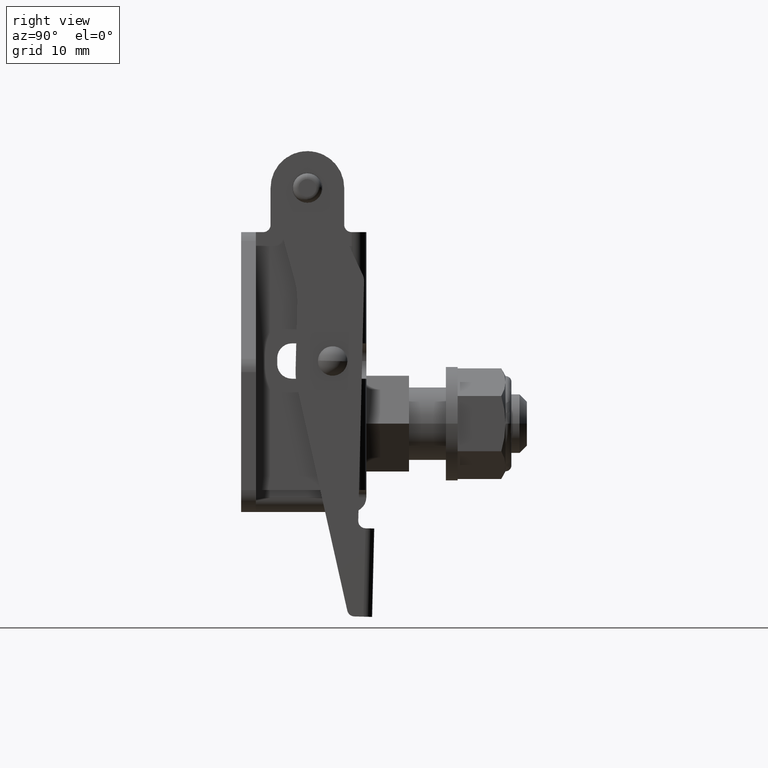
[diagram: clean part render]
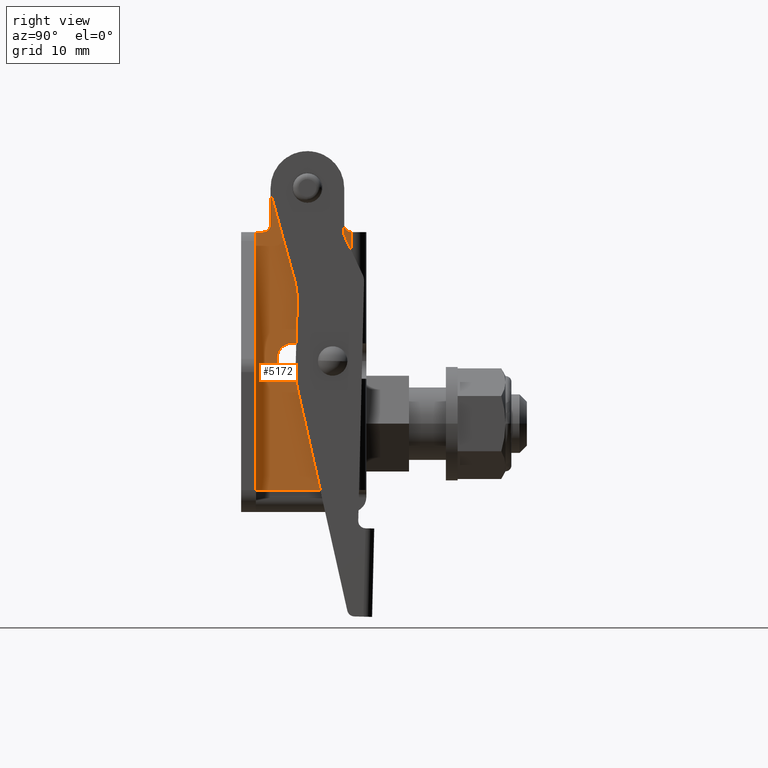
[diagram: same view with one face highlighted and labeled with its STEP entity id]
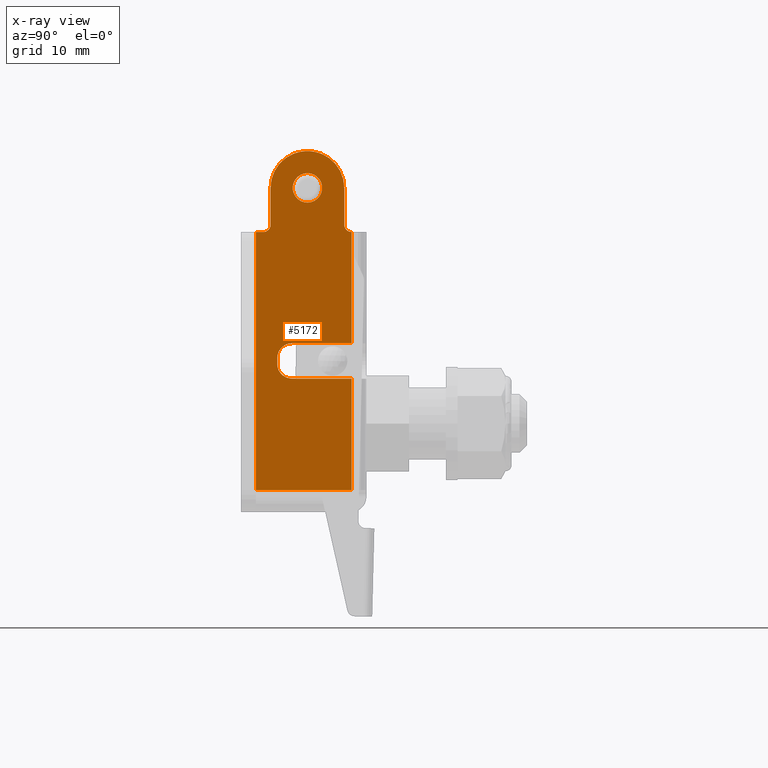
[diagram: x-ray of the same camera — body ghosted, the highlighted face saturated]
A machine part, right view. The second image highlights one B-rep face of the part: STEP entity #5172.
The next image is the same camera in x-ray: the body ghosted, the highlighted face saturated — about 0% of this face is hidden behind the body in this view.
In plain terms, the highlighted planar face has unit normal (1, 0, 0).
Its self-contained STEP definition (entity closure, byte-faithful):
#98 = DIRECTION ( 'NONE',  ( 0.0000000000000000000, 1.000000000000000000, 0.0000000000000000000 ) ) ;
#243 = VERTEX_POINT ( 'NONE', #5981 ) ;
#319 = ORIENTED_EDGE ( 'NONE', *, *, #6532, .T. ) ;
#422 = CIRCLE ( 'NONE', #5899, 4.999999999999997300 ) ;
#431 = EDGE_CURVE ( 'NONE', #6298, #2782, #8142, .T. ) ;
#438 = ORIENTED_EDGE ( 'NONE', *, *, #6335, .T. ) ;
#463 = CARTESIAN_POINT ( 'NONE',  ( 16.49999999999999300, 3.000000000000000000, 26.00000000000000700 ) ) ;
#521 = VECTOR ( 'NONE', #9909, 1000.000000000000000 ) ;
#543 = CARTESIAN_POINT ( 'NONE',  ( 16.50000000000000000, 15.00000000000000200, -12.00000000000000000 ) ) ;
#743 = CARTESIAN_POINT ( 'NONE',  ( 16.49999999999999600, 6.900000000000001200, 8.100000000000005000 ) ) ;
#1022 = VECTOR ( 'NONE', #98, 1000.000000000000000 ) ;
#1155 = VERTEX_POINT ( 'NONE', #8279 ) ;
#1179 = EDGE_LOOP ( 'NONE', ( #319, #7028, #8152, #6154, #2257, #1730, #8634, #1729, #438, #7155, #6210, #8475, #7410, #6453, #1508 ) ) ;
#1314 = EDGE_CURVE ( 'NONE', #243, #1155, #8227, .T. ) ;
#1508 = ORIENTED_EDGE ( 'NONE', *, *, #2205, .T. ) ;
#1523 = DIRECTION ( 'NONE',  ( 0.0000000000000000000, 0.0000000000000000000, -1.000000000000000000 ) ) ;
#1529 = LINE ( 'NONE', #1993, #9569 ) ;
#1672 = CARTESIAN_POINT ( 'NONE',  ( 16.50000000000000000, 2.000000000000001800, -9.000000000000007100 ) ) ;
#1729 = ORIENTED_EDGE ( 'NONE', *, *, #5186, .T. ) ;
#1730 = ORIENTED_EDGE ( 'NONE', *, *, #3782, .T. ) ;
#1748 = CARTESIAN_POINT ( 'NONE',  ( 16.49999999999999600, 6.900000000000001200, 8.900000000000007500 ) ) ;
#1915 = AXIS2_PLACEMENT_3D ( 'NONE', #1748, #7172, #2527 ) ;
#1917 = ORIENTED_EDGE ( 'NONE', *, *, #1978, .F. ) ;
#1978 = EDGE_CURVE ( 'NONE', #1155, #243, #2867, .T. ) ;
#1993 = CARTESIAN_POINT ( 'NONE',  ( 16.50000000000000000, 4.000000000000000000, -12.00000000000000000 ) ) ;
#2131 = VERTEX_POINT ( 'NONE', #2282 ) ;
#2139 = LINE ( 'NONE', #543, #9949 ) ;
#2146 = VECTOR ( 'NONE', #3609, 1000.000000000000000 ) ;
#2205 = EDGE_CURVE ( 'NONE', #2782, #9200, #5551, .T. ) ;
#2219 = DIRECTION ( 'NONE',  ( -1.000000000000000000, -0.0000000000000000000, -1.577021341797097600E-016 ) ) ;
#2249 = VERTEX_POINT ( 'NONE', #5648 ) ;
#2257 = ORIENTED_EDGE ( 'NONE', *, *, #7683, .F. ) ;
#2280 = CARTESIAN_POINT ( 'NONE',  ( 16.49999999999999300, 2.000000000000001800, 26.00000000000000700 ) ) ;
#2282 = CARTESIAN_POINT ( 'NONE',  ( 16.49999999999999300, 4.000000000000000000, 27.00000000000000700 ) ) ;
#2474 = LINE ( 'NONE', #8857, #8431 ) ;
#2507 = AXIS2_PLACEMENT_3D ( 'NONE', #7496, #9076, #4419 ) ;
#2527 = DIRECTION ( 'NONE',  ( 0.0000000000000000000, 0.0000000000000000000, -1.000000000000000000 ) ) ;
#2540 = CARTESIAN_POINT ( 'NONE',  ( 16.49999999999999300, 9.000000000000001800, 32.00000000000000000 ) ) ;
#2640 = LINE ( 'NONE', #5136, #2146 ) ;
#2646 = DIRECTION ( 'NONE',  ( 0.0000000000000000000, -1.000000000000000000, 0.0000000000000000000 ) ) ;
#2672 = VERTEX_POINT ( 'NONE', #8459 ) ;
#2774 = AXIS2_PLACEMENT_3D ( 'NONE', #6866, #2219, #7661 ) ;
#2782 = VERTEX_POINT ( 'NONE', #3286 ) ;
#2867 = CIRCLE ( 'NONE', #7658, 1.999999999999994900 ) ;
#2873 = EDGE_CURVE ( 'NONE', #2249, #3573, #7938, .T. ) ;
#2973 = CIRCLE ( 'NONE', #2774, 1.000000000000000900 ) ;
#3094 = DIRECTION ( 'NONE',  ( 0.0000000000000000000, -1.000000000000000000, 0.0000000000000000000 ) ) ;
#3143 = VERTEX_POINT ( 'NONE', #5231 ) ;
#3286 = CARTESIAN_POINT ( 'NONE',  ( 16.49999999999999300, 2.000000000000001800, 26.00000000000000400 ) ) ;
#3404 = DIRECTION ( 'NONE',  ( -0.0000000000000000000, 1.000000000000000000, 1.433655765270088600E-016 ) ) ;
#3429 = CIRCLE ( 'NONE', #1915, 2.000000000000000000 ) ;
#3542 = VERTEX_POINT ( 'NONE', #6770 ) ;
#3573 = VERTEX_POINT ( 'NONE', #8379 ) ;
#3609 = DIRECTION ( 'NONE',  ( -1.577021341797097600E-016, -0.0000000000000000000, 1.000000000000000000 ) ) ;
#3782 = EDGE_CURVE ( 'NONE', #5109, #3573, #3429, .T. ) ;
#3836 = CIRCLE ( 'NONE', #9427, 2.000000000000000000 ) ;
#4027 = DIRECTION ( 'NONE',  ( -1.000000000000000000, -0.0000000000000000000, -1.577021341797097600E-016 ) ) ;
#4040 = DIRECTION ( 'NONE',  ( 0.0000000000000000000, 0.0000000000000000000, -1.000000000000000000 ) ) ;
#4361 = DIRECTION ( 'NONE',  ( -1.577021341797097600E-016, 0.0000000000000000000, 1.000000000000000000 ) ) ;
#4387 = PLANE ( 'NONE',  #2507 ) ;
#4419 = DIRECTION ( 'NONE',  ( 1.577021341797097600E-016, 0.0000000000000000000, -1.000000000000000000 ) ) ;
#4512 = CARTESIAN_POINT ( 'NONE',  ( 16.49999999999999300, 9.000000000000001800, 32.00000000000000000 ) ) ;
#4611 = EDGE_CURVE ( 'NONE', #5548, #6735, #2640, .T. ) ;
#4645 = DIRECTION ( 'NONE',  ( 1.000000000000000000, 0.0000000000000000000, 1.577021341797097600E-016 ) ) ;
#5015 = VERTEX_POINT ( 'NONE', #6539 ) ;
#5045 = CARTESIAN_POINT ( 'NONE',  ( 16.49999999999999600, 15.00000000000000200, 6.100000000000006800 ) ) ;
#5109 = VERTEX_POINT ( 'NONE', #8141 ) ;
#5128 = DIRECTION ( 'NONE',  ( -1.577021341797097600E-016, -0.0000000000000000000, 1.000000000000000000 ) ) ;
#5136 = CARTESIAN_POINT ( 'NONE',  ( 16.50000000000000000, 15.00000000000000200, -12.00000000000000000 ) ) ;
#5172 = ADVANCED_FACE ( 'NONE', ( #8090, #7851 ), #4387, .T. ) ;
#5186 = EDGE_CURVE ( 'NONE', #2249, #8305, #2139, .T. ) ;
#5205 = CARTESIAN_POINT ( 'NONE',  ( 16.50000000000000000, 15.00000000000000200, -9.000000000000007100 ) ) ;
#5231 = CARTESIAN_POINT ( 'NONE',  ( 16.49999999999999600, 6.900000000000001200, 6.100000000000005000 ) ) ;
#5285 = DIRECTION ( 'NONE',  ( 0.0000000000000000000, 0.0000000000000000000, -1.000000000000000000 ) ) ;
#5413 = LINE ( 'NONE', #1672, #1022 ) ;
#5500 = EDGE_CURVE ( 'NONE', #2131, #7596, #1529, .T. ) ;
#5548 = VERTEX_POINT ( 'NONE', #5205 ) ;
#5551 = LINE ( 'NONE', #9467, #7352 ) ;
#5582 = AXIS2_PLACEMENT_3D ( 'NONE', #8693, #4027, #9485 ) ;
#5648 = CARTESIAN_POINT ( 'NONE',  ( 16.49999999999999600, 15.00000000000000200, 10.90000000000000700 ) ) ;
#5883 = VECTOR ( 'NONE', #2646, 1000.000000000000000 ) ;
#5899 = AXIS2_PLACEMENT_3D ( 'NONE', #9308, #4645, #10090 ) ;
#5981 = CARTESIAN_POINT ( 'NONE',  ( 16.49999999999999300, 9.000000000000001800, 33.99999999999999300 ) ) ;
#5986 = EDGE_CURVE ( 'NONE', #3143, #2672, #3836, .T. ) ;
#6135 = EDGE_CURVE ( 'NONE', #2131, #6298, #6979, .T. ) ;
#6154 = ORIENTED_EDGE ( 'NONE', *, *, #5986, .T. ) ;
#6179 = DIRECTION ( 'NONE',  ( -1.000000000000000000, -0.0000000000000000000, -1.577021341797097600E-016 ) ) ;
#6210 = ORIENTED_EDGE ( 'NONE', *, *, #6386, .T. ) ;
#6298 = VERTEX_POINT ( 'NONE', #463 ) ;
#6335 = EDGE_CURVE ( 'NONE', #8305, #3542, #2973, .T. ) ;
#6349 = DIRECTION ( 'NONE',  ( 1.577021341797097600E-016, -0.0000000000000000000, -1.000000000000000000 ) ) ;
#6386 = EDGE_CURVE ( 'NONE', #5015, #7596, #422, .T. ) ;
#6453 = ORIENTED_EDGE ( 'NONE', *, *, #431, .T. ) ;
#6466 = AXIS2_PLACEMENT_3D ( 'NONE', #2540, #8731, #4040 ) ;
#6532 = EDGE_CURVE ( 'NONE', #9200, #5548, #5413, .T. ) ;
#6539 = CARTESIAN_POINT ( 'NONE',  ( 16.49999999999999300, 14.00000000000000200, 32.00000000000000000 ) ) ;
#6703 = LINE ( 'NONE', #9116, #521 ) ;
#6735 = VERTEX_POINT ( 'NONE', #5045 ) ;
#6770 = CARTESIAN_POINT ( 'NONE',  ( 16.49999999999999300, 14.00000000000000200, 27.00000000000000400 ) ) ;
#6866 = CARTESIAN_POINT ( 'NONE',  ( 16.49999999999999300, 15.00000000000000400, 27.00000000000000400 ) ) ;
#6886 = EDGE_CURVE ( 'NONE', #3143, #6735, #2474, .T. ) ;
#6979 = CIRCLE ( 'NONE', #5582, 1.000000000000000900 ) ;
#6998 = EDGE_CURVE ( 'NONE', #3542, #5015, #9789, .T. ) ;
#7028 = ORIENTED_EDGE ( 'NONE', *, *, #4611, .T. ) ;
#7155 = ORIENTED_EDGE ( 'NONE', *, *, #6998, .T. ) ;
#7172 = DIRECTION ( 'NONE',  ( -1.000000000000000000, -0.0000000000000000000, -1.577021341797097600E-016 ) ) ;
#7287 = CARTESIAN_POINT ( 'NONE',  ( 16.49999999999999600, 17.00000000000000000, 10.90000000000000700 ) ) ;
#7352 = VECTOR ( 'NONE', #6349, 1000.000000000000000 ) ;
#7410 = ORIENTED_EDGE ( 'NONE', *, *, #6135, .T. ) ;
#7469 = CARTESIAN_POINT ( 'NONE',  ( 16.49999999999999300, 4.000000000000000000, 32.00000000000000000 ) ) ;
#7496 = CARTESIAN_POINT ( 'NONE',  ( 16.50000000000000000, 2.000000000000001800, -12.00000000000000000 ) ) ;
#7596 = VERTEX_POINT ( 'NONE', #7469 ) ;
#7658 = AXIS2_PLACEMENT_3D ( 'NONE', #4512, #9953, #5285 ) ;
#7661 = DIRECTION ( 'NONE',  ( 0.0000000000000000000, 0.0000000000000000000, -1.000000000000000000 ) ) ;
#7683 = EDGE_CURVE ( 'NONE', #5109, #2672, #6703, .T. ) ;
#7697 = VECTOR ( 'NONE', #8203, 1000.000000000000000 ) ;
#7851 = FACE_BOUND ( 'NONE', #8533, .T. ) ;
#7938 = LINE ( 'NONE', #7287, #5883 ) ;
#8090 = FACE_OUTER_BOUND ( 'NONE', #1179, .T. ) ;
#8141 = CARTESIAN_POINT ( 'NONE',  ( 16.49999999999999600, 4.900000000000001200, 8.900000000000007500 ) ) ;
#8142 = LINE ( 'NONE', #2280, #9747 ) ;
#8152 = ORIENTED_EDGE ( 'NONE', *, *, #6886, .F. ) ;
#8203 = DIRECTION ( 'NONE',  ( 0.0000000000000000000, 0.0000000000000000000, 1.000000000000000000 ) ) ;
#8227 = CIRCLE ( 'NONE', #6466, 1.999999999999994900 ) ;
#8279 = CARTESIAN_POINT ( 'NONE',  ( 16.49999999999999300, 9.000000000000001800, 30.00000000000000700 ) ) ;
#8305 = VERTEX_POINT ( 'NONE', #9726 ) ;
#8379 = CARTESIAN_POINT ( 'NONE',  ( 16.49999999999999600, 6.900000000000001200, 10.90000000000000700 ) ) ;
#8431 = VECTOR ( 'NONE', #3404, 1000.000000000000000 ) ;
#8459 = CARTESIAN_POINT ( 'NONE',  ( 16.49999999999999600, 4.900000000000001200, 8.100000000000005000 ) ) ;
#8475 = ORIENTED_EDGE ( 'NONE', *, *, #5500, .F. ) ;
#8533 = EDGE_LOOP ( 'NONE', ( #9267, #1917 ) ) ;
#8634 = ORIENTED_EDGE ( 'NONE', *, *, #2873, .F. ) ;
#8693 = CARTESIAN_POINT ( 'NONE',  ( 16.49999999999999300, 3.000000000000000000, 27.00000000000000400 ) ) ;
#8728 = CARTESIAN_POINT ( 'NONE',  ( 16.49999999999999300, 2.000000000000001800, -9.000000000000007100 ) ) ;
#8731 = DIRECTION ( 'NONE',  ( 1.000000000000000000, 0.0000000000000000000, 1.577021341797097600E-016 ) ) ;
#8857 = CARTESIAN_POINT ( 'NONE',  ( 16.49999999999999600, 17.00000000000000000, 6.100000000000006800 ) ) ;
#9076 = DIRECTION ( 'NONE',  ( 1.000000000000000000, 0.0000000000000000000, 1.577021341797097600E-016 ) ) ;
#9116 = CARTESIAN_POINT ( 'NONE',  ( 16.49999999999999600, 4.900000000000001200, 10.90000000000000700 ) ) ;
#9200 = VERTEX_POINT ( 'NONE', #8728 ) ;
#9267 = ORIENTED_EDGE ( 'NONE', *, *, #1314, .F. ) ;
#9308 = CARTESIAN_POINT ( 'NONE',  ( 16.49999999999999300, 9.000000000000001800, 32.00000000000000000 ) ) ;
#9427 = AXIS2_PLACEMENT_3D ( 'NONE', #743, #6179, #1523 ) ;
#9467 = CARTESIAN_POINT ( 'NONE',  ( 16.50000000000000000, 2.000000000000001800, -12.00000000000000000 ) ) ;
#9485 = DIRECTION ( 'NONE',  ( 0.0000000000000000000, 0.0000000000000000000, -1.000000000000000000 ) ) ;
#9569 = VECTOR ( 'NONE', #4361, 1000.000000000000000 ) ;
#9726 = CARTESIAN_POINT ( 'NONE',  ( 16.49999999999999300, 15.00000000000000200, 26.00000000000000400 ) ) ;
#9747 = VECTOR ( 'NONE', #3094, 1000.000000000000000 ) ;
#9751 = CARTESIAN_POINT ( 'NONE',  ( 16.49999999999999300, 14.00000000000000200, 26.00000000000000400 ) ) ;
#9789 = LINE ( 'NONE', #9751, #7697 ) ;
#9909 = DIRECTION ( 'NONE',  ( 0.0000000000000000000, 0.0000000000000000000, -1.000000000000000000 ) ) ;
#9949 = VECTOR ( 'NONE', #5128, 1000.000000000000000 ) ;
#9953 = DIRECTION ( 'NONE',  ( 1.000000000000000000, 0.0000000000000000000, 1.577021341797097600E-016 ) ) ;
#10090 = DIRECTION ( 'NONE',  ( 0.0000000000000000000, 0.0000000000000000000, -1.000000000000000000 ) ) ;